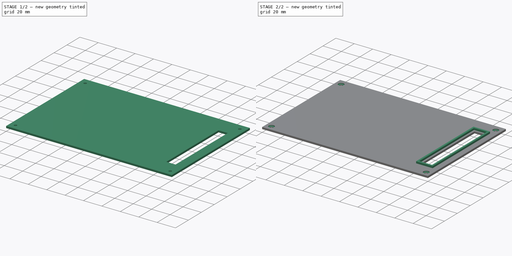
[diagram: build sequence overview — one tinted view per stage of 2, left to right]
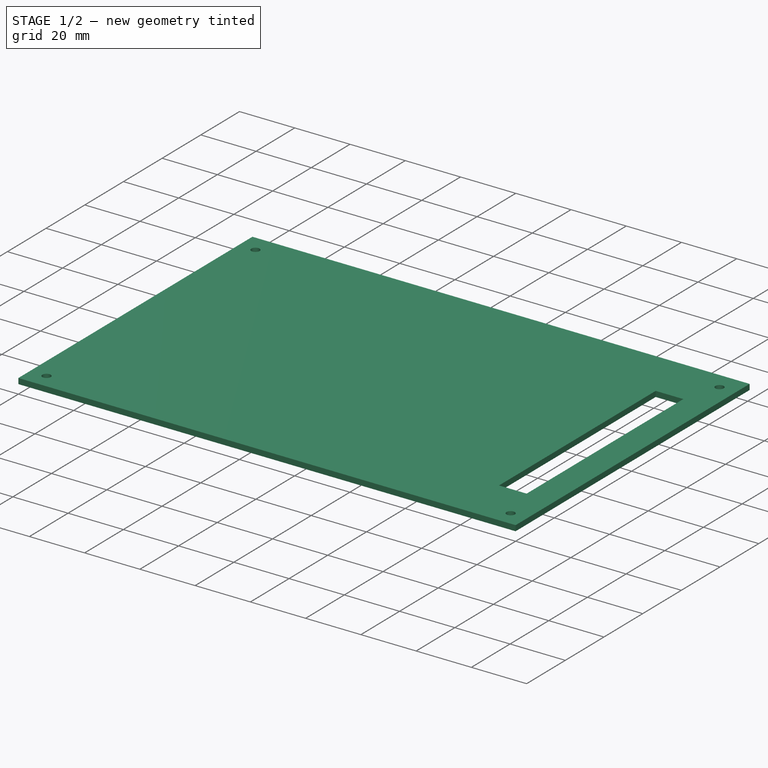
[diagram: stage 1 of 2 — iso view after this stage's code; geometry added in this stage tinted green]
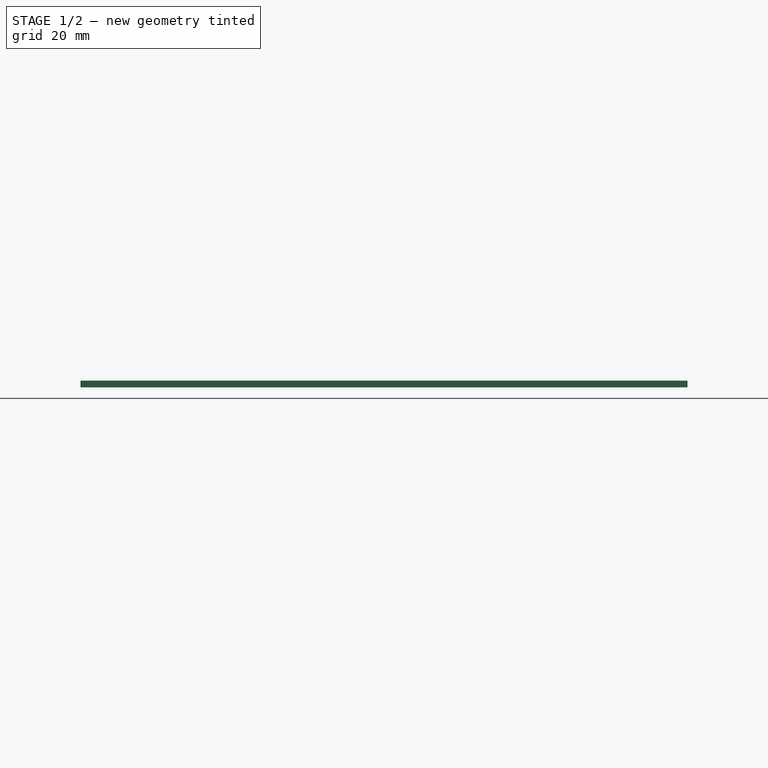
[diagram: stage 1 of 2 — front view after this stage's code; geometry added in this stage tinted green]
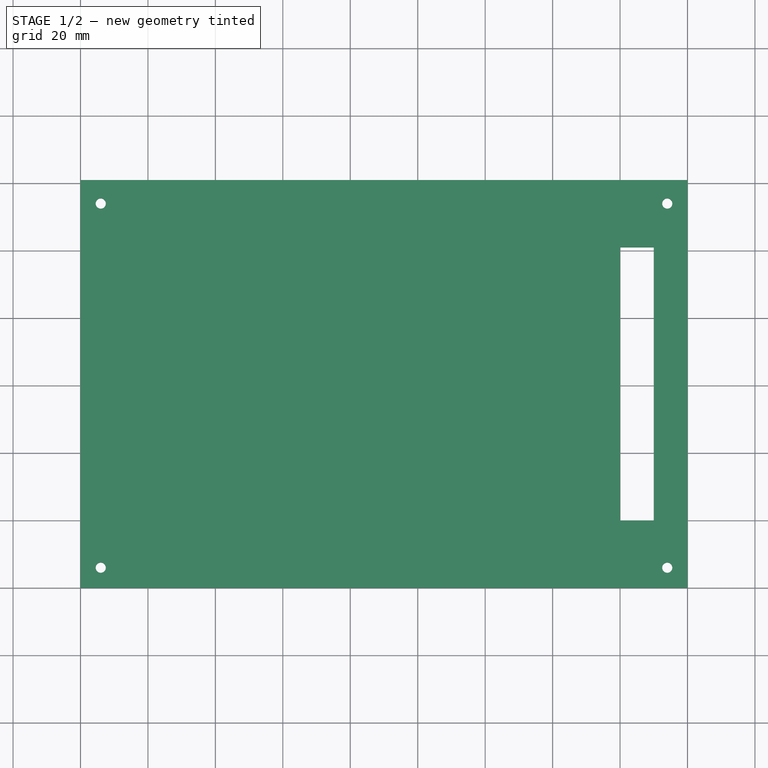
[diagram: stage 1 of 2 — top view after this stage's code; geometry added in this stage tinted green]
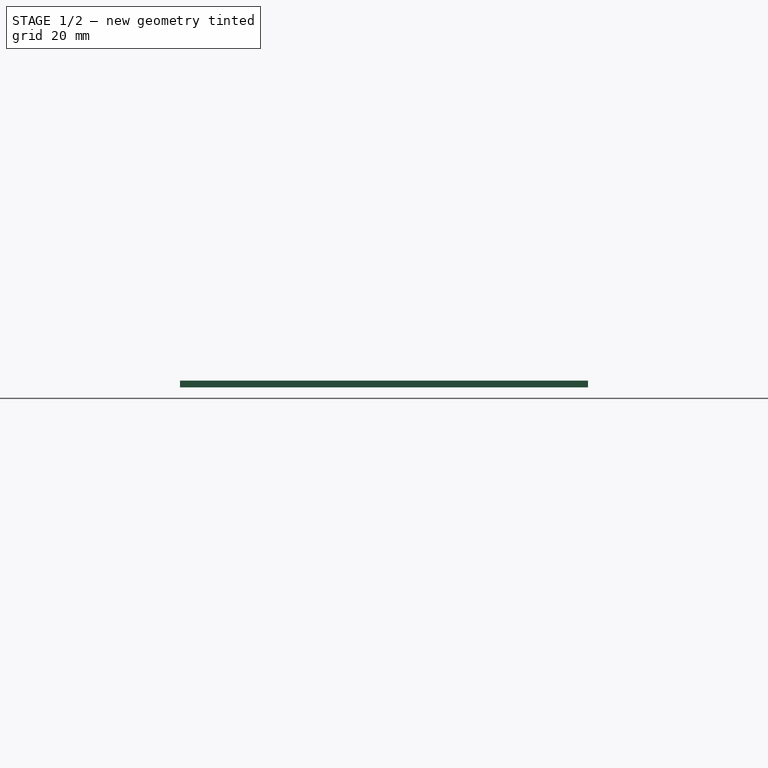
[diagram: stage 1 of 2 — right view after this stage's code; geometry added in this stage tinted green]
FCSTD DOCUMENT  (FreeCAD 0.16R6706 (Git))
Label: iROB-EA_ModuloArduinoTapa
License: All rights reserved
LicenseURL: http://en.wikipedia.org/wiki/All_rights_reserved
objects: Sketcher::SketchObject×4, PartDesign::Pad×2, PartDesign::Pocket×2
note: 12 computed .brp shape members not serialized (recipe doc carries the construction recipe); baked Part::Feature solids carry a one-line shape summary decoded from their .brp

FEATURE [Sketcher::SketchObject] Sketch  label="Base"
  sketch-geometry (4):
    g0: LineSegment StartX=0 StartY=121 StartZ=0 EndX=180 EndY=121 EndZ=0
    g1: LineSegment StartX=180 StartY=121 StartZ=0 EndX=180 EndY=0 EndZ=0
    g2: LineSegment StartX=180 StartY=0 StartZ=0 EndX=0 EndY=0 EndZ=0
    g3: LineSegment StartX=0 StartY=0 StartZ=0 EndX=0 EndY=121 EndZ=0
  constraints (11):
    c: Coincident(g0,g1)
    c: Coincident(g1,g2)
    c: Coincident(g2,g3)
    c: Coincident(g3,g0)
    c: Horizontal(g0)
    c: Horizontal(g2)
    c: Vertical(g1)
    c: Vertical(g3)
    c: DistanceY(g1,g1) = 121
    c: DistanceX(g2,g2) = 180
    c: Coincident(g2,g-1)
FEATURE [PartDesign::Pad] Pad
  Length = 2
  Length2 = 100
  Sketch = -> Sketch
  Type = 0
FEATURE [Sketcher::SketchObject] Sketch001  label="Ranura_Cables"
  Placement = pos=(0,0,2) rot=(0,0,1;0rad)
  Support = -> Pad [Face6]
  sketch-geometry (8):
    g0: LineSegment StartX=160 StartY=101 StartZ=0 EndX=170 EndY=101 EndZ=0
    g1: LineSegment StartX=170 StartY=101 StartZ=0 EndX=170 EndY=20 EndZ=0
    g2: LineSegment StartX=170 StartY=20 StartZ=0 EndX=160 EndY=20 EndZ=0
    g3: LineSegment StartX=160 StartY=20 StartZ=0 EndX=160 EndY=101 EndZ=0
    g4: Circle CenterX=6 CenterY=6 CenterZ=0 NormalX=0 NormalY=0 NormalZ=1 Radius=1.5
    g5: Circle CenterX=6 CenterY=114 CenterZ=0 NormalX=0 NormalY=0 NormalZ=1 Radius=1.5
    g6: Circle CenterX=174 CenterY=114 CenterZ=0 NormalX=0 NormalY=0 NormalZ=1 Radius=1.5
    g7: Circle CenterX=174 CenterY=6 CenterZ=0 NormalX=0 NormalY=0 NormalZ=1 Radius=1.5
  constraints (24):
    c: Coincident(g0,g1)
    c: Coincident(g1,g2)
    c: Coincident(g2,g3)
    c: Coincident(g3,g0)
    c: Horizontal(g0)
    c: Horizontal(g2)
    c: Vertical(g1)
    c: Vertical(g3)
    c: DistanceY(g1,g1) = 81
    c: DistanceX(g0,g0) = 10
    c: DistanceX(g2,g-1) = -160
    c: DistanceY(g-1,g2) = 20
    c: Radius(g4) = 1.5
    c: DistanceX(g4,g-1) = -6
    c: DistanceY(g-1,g4) = 6
    c: Radius(g5) = 1.5
    c: DistanceX(g5,g-1) = -6
    c: DistanceY(g4,g5) = 108
    c: Radius(g6) = 1.5
    c: DistanceY(g5,g6) = 0
    c: DistanceX(g5,g6) = 168
    c: Radius(g7) = 1.5
    c: DistanceX(g6,g7) = 0
    c: DistanceY(g7,g6) = 108
FEATURE [PartDesign::Pocket] Pocket
  Length = 2
  Sketch = -> Sketch001
  Type = 0
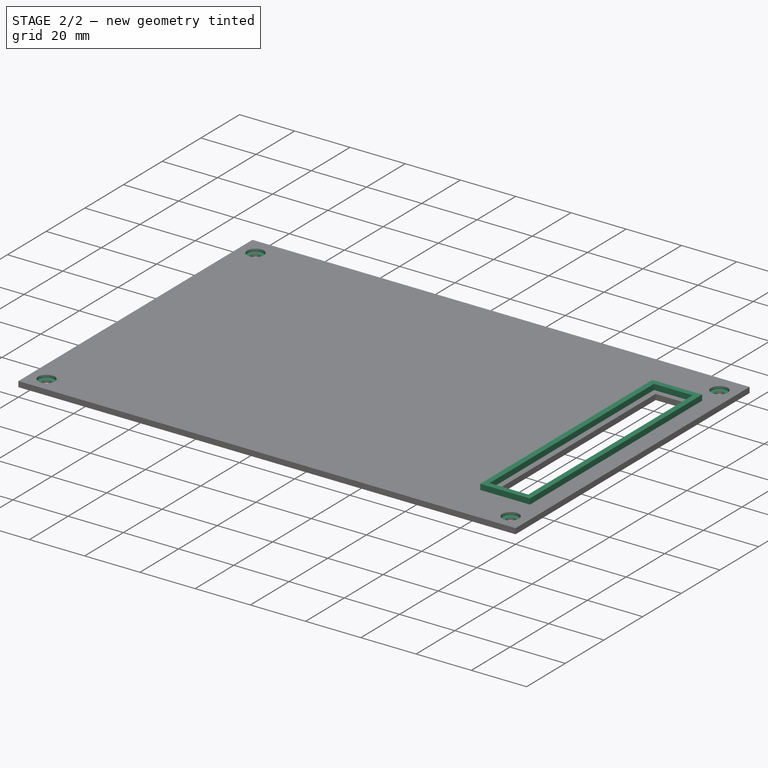
[diagram: stage 2 of 2 — iso view after this stage's code; geometry added in this stage tinted green]
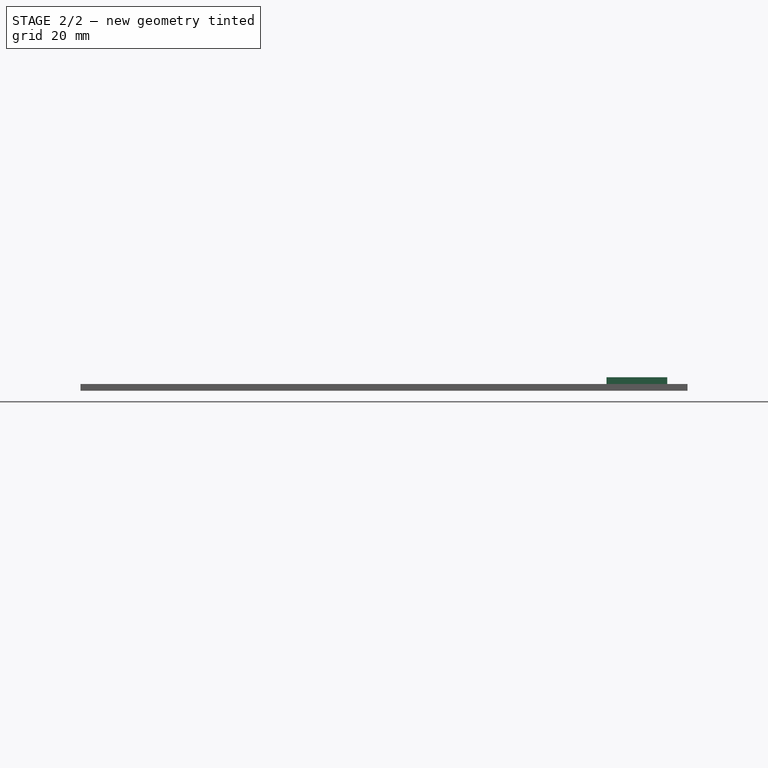
[diagram: stage 2 of 2 — front view after this stage's code; geometry added in this stage tinted green]
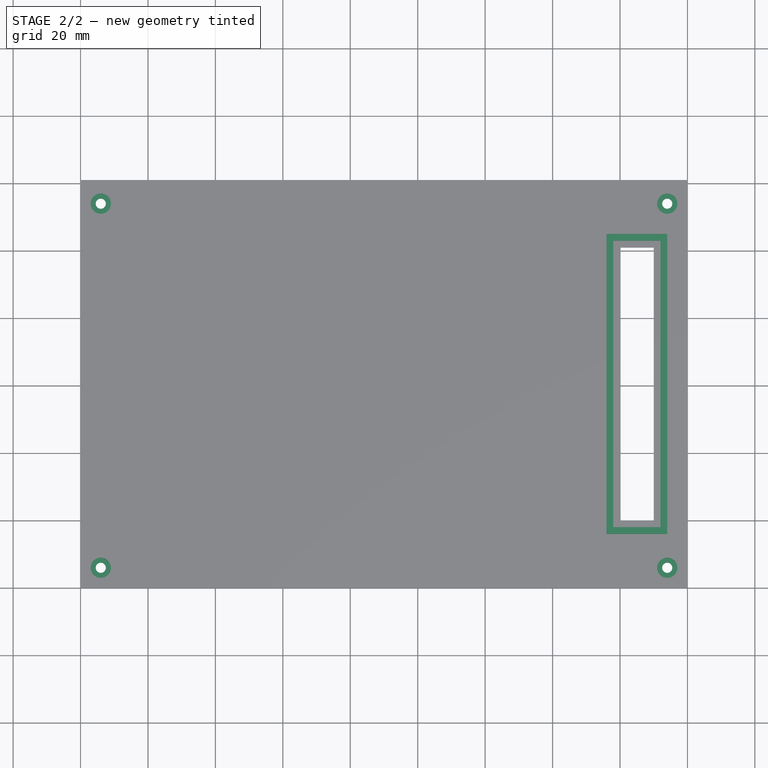
[diagram: stage 2 of 2 — top view after this stage's code; geometry added in this stage tinted green]
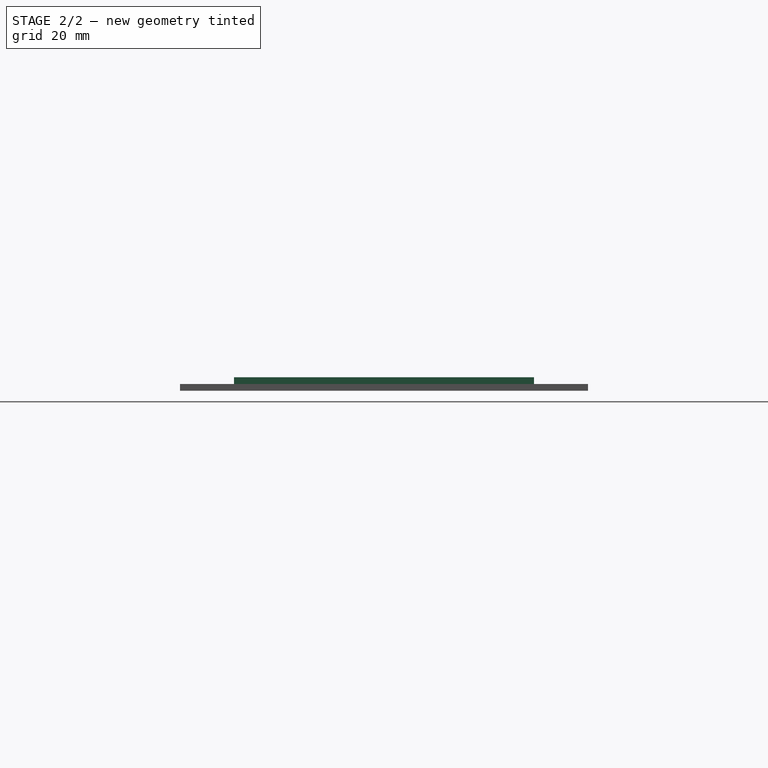
[diagram: stage 2 of 2 — right view after this stage's code; geometry added in this stage tinted green]
FEATURE [Sketcher::SketchObject] Sketch002  label="Cables_Molde"
  Placement = pos=(0,0,2) rot=(0,0,1;0rad)
  Support = -> Pocket [Face5]
  sketch-geometry (4):
    g0: Circle CenterX=6 CenterY=6 CenterZ=0 NormalX=0 NormalY=0 NormalZ=1 Radius=3
    g1: Circle CenterX=6 CenterY=114 CenterZ=0 NormalX=0 NormalY=0 NormalZ=1 Radius=3
    g2: Circle CenterX=174 CenterY=114 CenterZ=0 NormalX=0 NormalY=0 NormalZ=1 Radius=3
    g3: Circle CenterX=174 CenterY=6 CenterZ=0 NormalX=0 NormalY=0 NormalZ=1 Radius=3
  constraints (12):
    c: Radius(g0) = 3
    c: DistanceY(g-1,g0) = 6
    c: DistanceX(g-1,g0) = 6
    c: Radius(g1) = 3
    c: DistanceX(g1,g-1) = -6
    c: DistanceY(g0,g1) = 108
    c: Radius(g2) = 3
    c: DistanceY(g1,g2) = 0
    c: DistanceX(g1,g2) = 168
    c: Radius(g3) = 3
    c: DistanceY(g0,g3) = 0
    c: DistanceX(g0,g3) = 168
FEATURE [PartDesign::Pocket] Pocket001
  Length = 1
  Sketch = -> Sketch002
  Type = 0
FEATURE [Sketcher::SketchObject] Sketch003
  Placement = pos=(0,0,2) rot=(0,0,1;0rad)
  Support = -> Pocket001 [Face5]
  sketch-geometry (8):
    g0: LineSegment StartX=158 StartY=103 StartZ=0 EndX=172 EndY=103 EndZ=0
    g1: LineSegment StartX=172 StartY=103 StartZ=0 EndX=172 EndY=18 EndZ=0
    g2: LineSegment StartX=172 StartY=18 StartZ=0 EndX=158 EndY=18 EndZ=0
    g3: LineSegment StartX=158 StartY=18 StartZ=0 EndX=158 EndY=103 EndZ=0
    g4: LineSegment StartX=156 StartY=105 StartZ=0 EndX=174 EndY=105 EndZ=0
    g5: LineSegment StartX=174 StartY=105 StartZ=0 EndX=174 EndY=16 EndZ=0
    g6: LineSegment StartX=174 StartY=16 StartZ=0 EndX=156 EndY=16 EndZ=0
    g7: LineSegment StartX=156 StartY=16 StartZ=0 EndX=156 EndY=105 EndZ=0
  constraints (24):
    c: Coincident(g0,g1)
    c: Coincident(g1,g2)
    c: Coincident(g2,g3)
    c: Coincident(g3,g0)
    c: Horizontal(g0)
    c: Horizontal(g2)
    c: Vertical(g1)
    c: Vertical(g3)
    c: DistanceX(g0,g0) = 14
    c: DistanceY(g3,g3) = 85
    c: DistanceX(g-1,g2) = 158
    c: DistanceY(g-1,g2) = 18
    c: Coincident(g4,g5)
    c: Coincident(g5,g6)
    c: Coincident(g6,g7)
    c: Coincident(g7,g4)
    c: Horizontal(g4)
    c: Horizontal(g6)
    c: Vertical(g5)
    c: Vertical(g7)
    c: DistanceX(g4,g4) = 18
    c: DistanceY(g7,g7) = 89
    c: DistanceY(g-1,g6) = 16
    c: DistanceX(g-1,g6) = 156
FEATURE [PartDesign::Pad] Pad001
  Length = 2
  Length2 = 100
  Sketch = -> Sketch003
  Type = 0
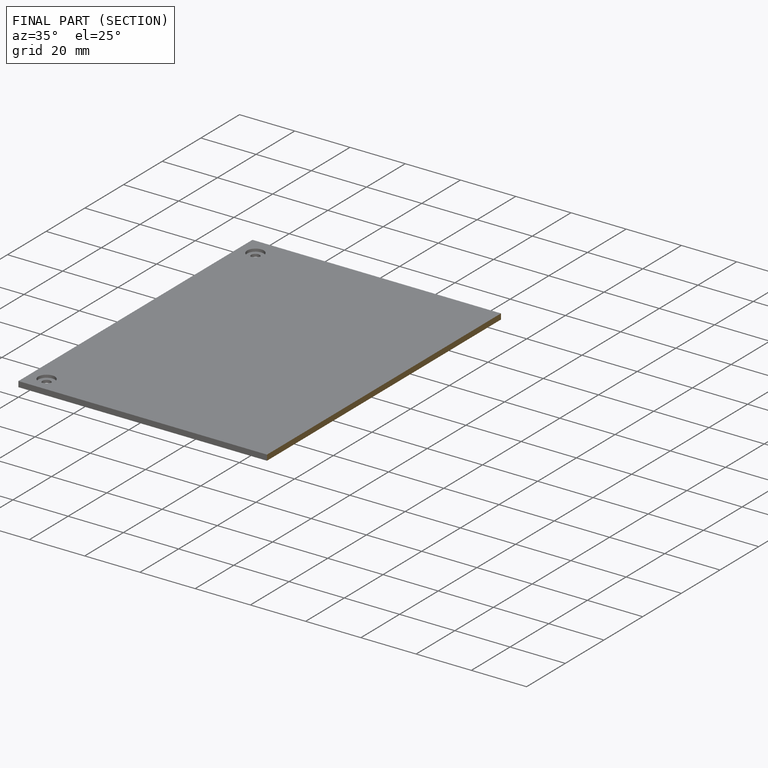
[diagram: finished part — half-section view (interior)]
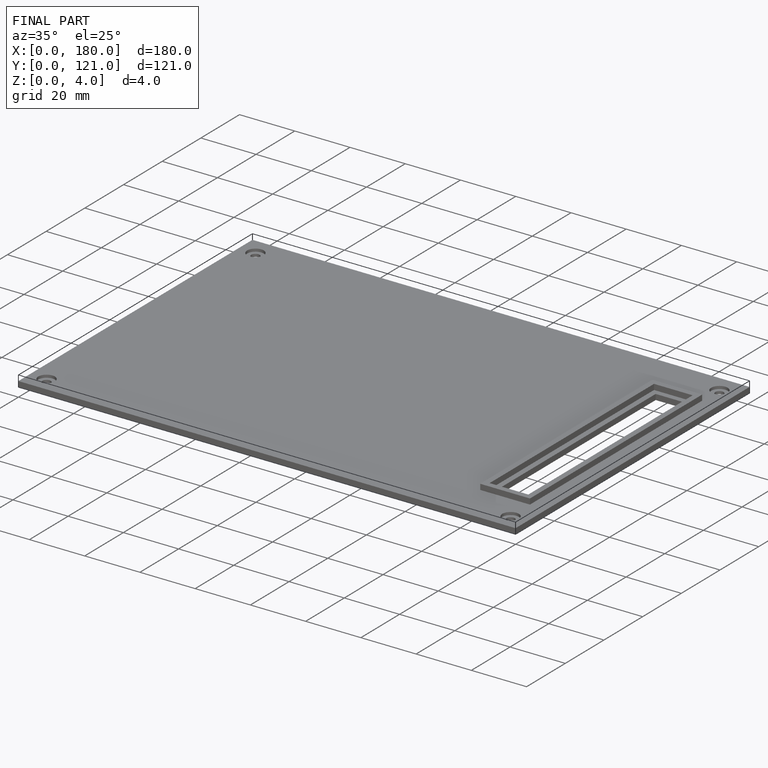
[diagram: finished part — iso view with bounding-box wireframe]
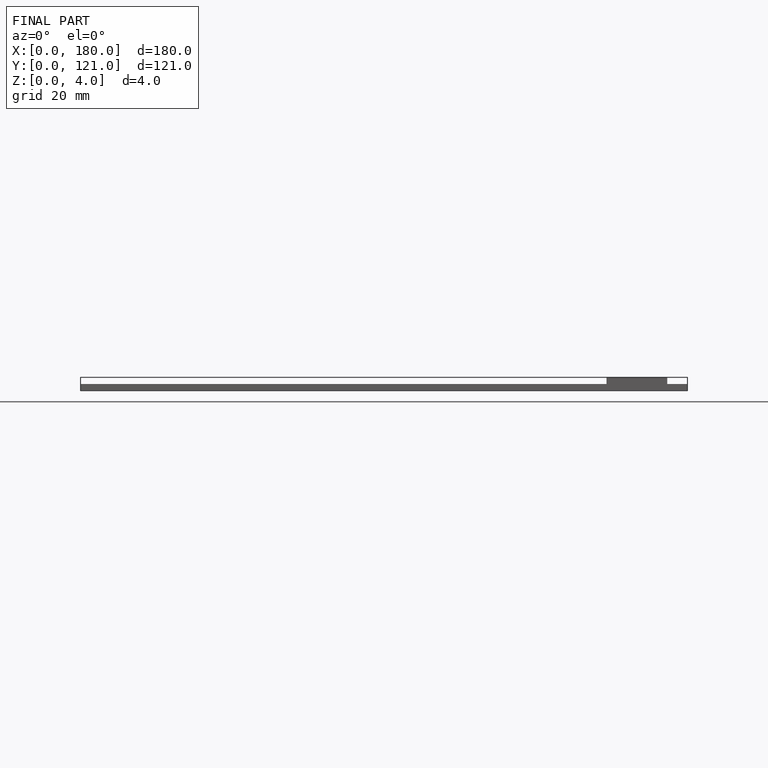
[diagram: finished part — front view with bounding-box wireframe]
